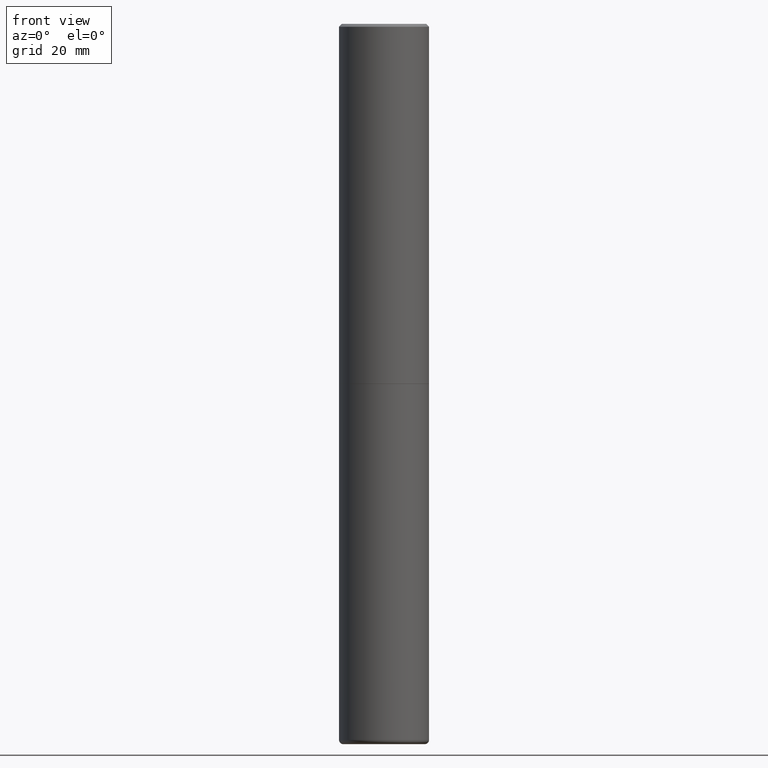
[diagram: clean part render]
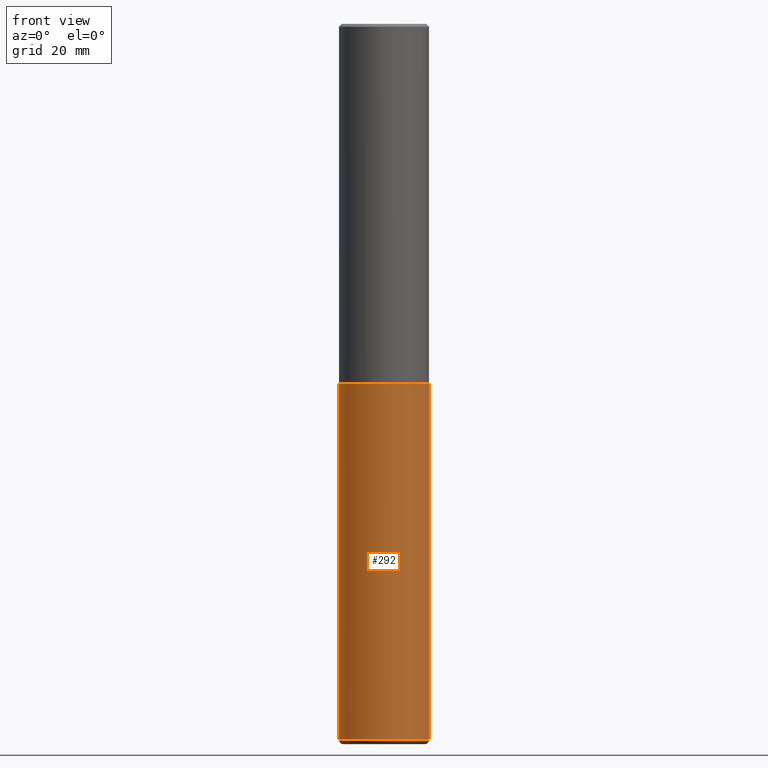
[diagram: same view with one face highlighted and labeled with its STEP entity id]
A machine part, front view. The second image highlights one B-rep face of the part: STEP entity #292.
In plain terms, the highlighted cylindrical surface (partial cylindrical patch) has radius 7.9375 mm, axis along (-0, 0, 1).
Its self-contained STEP definition (entity closure, byte-faithful):
#11 = DIRECTION ( 'NONE',  ( -2.445468806185136877E-29, 3.491481338843145188E-15, 1.000000000000000000 ) ) ;
#50 = ORIENTED_EDGE ( 'NONE', *, *, #384, .T. ) ;
#52 = CARTESIAN_POINT ( 'NONE',  ( 0.3124999999999998890, -2.182175836776957558E-15, 1.523805242436229235E-29 ) ) ;
#92 = DIRECTION ( 'NONE',  ( 1.000000000000000000, -6.982962677686265133E-15, 0.000000000000000000 ) ) ;
#97 = VERTEX_POINT ( 'NONE', #180 ) ;
#110 = VECTOR ( 'NONE', #11, 39.37007874015748143 ) ;
#120 = LINE ( 'NONE', #52, #315 ) ;
#121 = EDGE_LOOP ( 'NONE', ( #331, #261, #50, #400 ) ) ;
#147 = CARTESIAN_POINT ( 'NONE',  ( 0.3124999999999997224, -1.953483809082738382E-14, -4.969999999999998863 ) ) ;
#149 = FACE_OUTER_BOUND ( 'NONE', #121, .T. ) ;
#180 = CARTESIAN_POINT ( 'NONE',  ( -0.3125000000000000000, -1.082023675132883449E-14, -2.500000000000000000 ) ) ;
#203 = VERTEX_POINT ( 'NONE', #381 ) ;
#238 = VERTEX_POINT ( 'NONE', #147 ) ;
#247 = CARTESIAN_POINT ( 'NONE',  ( -0.3124999999999998890, 2.220446049250312292E-15, -1.537167215704657391E-29 ) ) ;
#256 = AXIS2_PLACEMENT_3D ( 'NONE', #279, #415, #92 ) ;
#261 = ORIENTED_EDGE ( 'NONE', *, *, #418, .T. ) ;
#279 = CARTESIAN_POINT ( 'NONE',  ( 6.113672015462842613E-29, -8.728703347107864943E-15, -2.500000000000000000 ) ) ;
#281 = DIRECTION ( 'NONE',  ( -2.445468806185136597E-29, 3.491481338843145583E-15, 1.000000000000000000 ) ) ;
#292 = ADVANCED_FACE ( 'NONE', ( #149 ), #380, .T. ) ;
#315 = VECTOR ( 'NONE', #364, 39.37007874015748143 ) ;
#318 = LINE ( 'NONE', #247, #110 ) ;
#324 = EDGE_CURVE ( 'NONE', #393, #97, #318, .T. ) ;
#328 = CARTESIAN_POINT ( 'NONE',  ( -0.3124999999999997224, -1.513221620480011712E-14, -4.969999999999998863 ) ) ;
#331 = ORIENTED_EDGE ( 'NONE', *, *, #324, .F. ) ;
#332 = DIRECTION ( 'NONE',  ( -2.445468806185136597E-29, 3.491481338843145583E-15, 1.000000000000000000 ) ) ;
#344 = AXIS2_PLACEMENT_3D ( 'NONE', #433, #332, #439 ) ;
#354 = DIRECTION ( 'NONE',  ( 1.000000000000000000, -6.982962677686266711E-15, 4.876176775795935232E-29 ) ) ;
#355 = CARTESIAN_POINT ( 'NONE',  ( 0.000000000000000000, 0.000000000000000000, 0.000000000000000000 ) ) ;
#364 = DIRECTION ( 'NONE',  ( -2.445468806185136877E-29, 3.491481338843145188E-15, 1.000000000000000000 ) ) ;
#371 = EDGE_CURVE ( 'NONE', #97, #203, #431, .T. ) ;
#380 = CYLINDRICAL_SURFACE ( 'NONE', #391, 0.3124999999999998890 ) ;
#381 = CARTESIAN_POINT ( 'NONE',  ( 0.3125000000000000000, -1.091087918388482329E-14, -2.500000000000000000 ) ) ;
#384 = EDGE_CURVE ( 'NONE', #238, #203, #120, .T. ) ;
#391 = AXIS2_PLACEMENT_3D ( 'NONE', #355, #281, #354 ) ;
#393 = VERTEX_POINT ( 'NONE', #328 ) ;
#399 = CIRCLE ( 'NONE', #344, 0.3124999999999997224 ) ;
#400 = ORIENTED_EDGE ( 'NONE', *, *, #371, .F. ) ;
#415 = DIRECTION ( 'NONE',  ( -2.445468806185136597E-29, 3.491481338843145583E-15, 1.000000000000000000 ) ) ;
#418 = EDGE_CURVE ( 'NONE', #393, #238, #399, .T. ) ;
#431 = CIRCLE ( 'NONE', #256, 0.3125000000000000000 ) ;
#433 = CARTESIAN_POINT ( 'NONE',  ( 1.215397996674012611E-28, -1.735266225405043020E-14, -4.969999999999998863 ) ) ;
#439 = DIRECTION ( 'NONE',  ( 1.000000000000000000, -6.982962677686262766E-15, 0.000000000000000000 ) ) ;